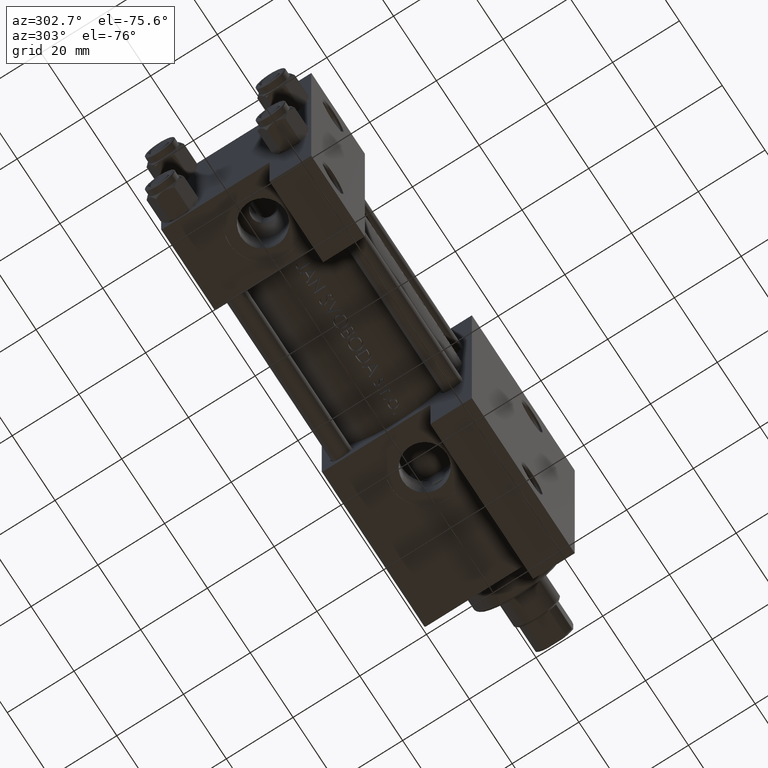
[diagram: clean part render]
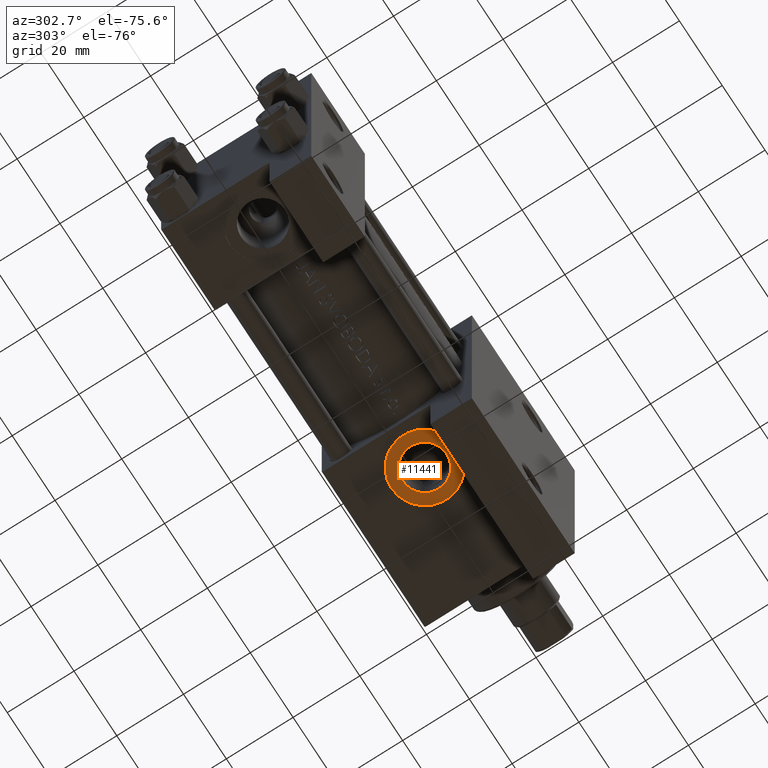
[diagram: same view with one face highlighted and labeled with its STEP entity id]
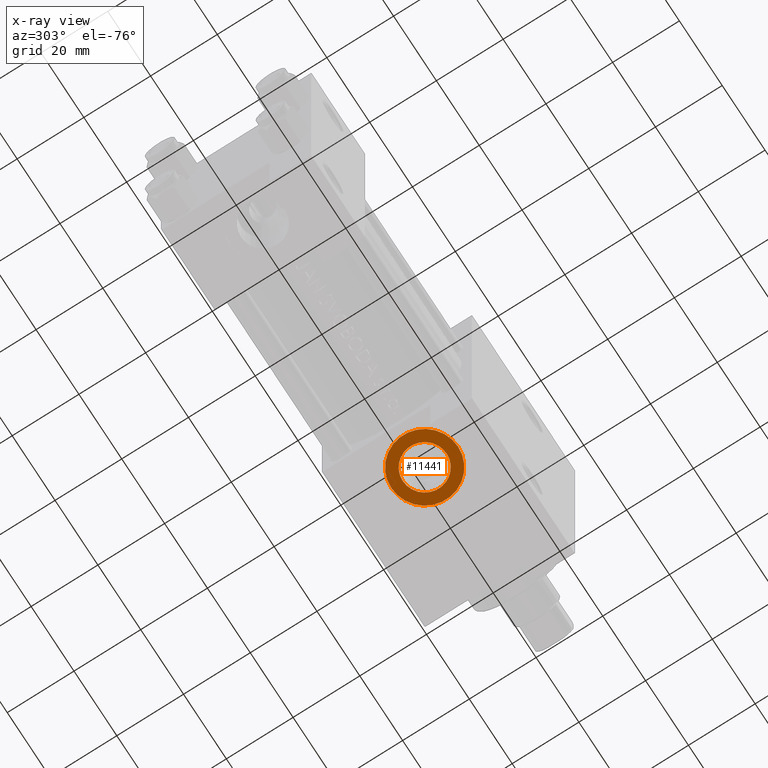
[diagram: x-ray of the same camera — body ghosted, the highlighted face saturated]
A machine part, auxiliary view. The second image highlights one B-rep face of the part: STEP entity #11441.
The next image is the same camera in x-ray: the body ghosted, the highlighted face saturated — about 0% of this face is hidden behind the body in this view.
In plain terms, the highlighted planar face has unit normal (0, 0, -1).
Its self-contained STEP definition (entity closure, byte-faithful):
#699 = AXIS2_PLACEMENT_3D ( 'NONE', #12300, #41633, #8684 ) ;
#757 = ORIENTED_EDGE ( 'NONE', *, *, #41939, .T. ) ;
#2469 = CARTESIAN_POINT ( 'NONE',  ( 88.00000000000001421, 22.30000000000000426, -6.580000000000002736 ) ) ;
#3579 = CARTESIAN_POINT ( 'NONE',  ( 88.00000000000001421, 22.30000000000000426, 6.580000000000002736 ) ) ;
#4231 = DIRECTION ( 'NONE',  ( 0.000000000000000000, 1.000000000000000000, 0.000000000000000000 ) ) ;
#6061 = AXIS2_PLACEMENT_3D ( 'NONE', #41026, #4231, #18441 ) ;
#8378 = ORIENTED_EDGE ( 'NONE', *, *, #22933, .F. ) ;
#8684 = DIRECTION ( 'NONE',  ( 0.000000000000000000, -0.000000000000000000, 1.000000000000000000 ) ) ;
#9396 = FACE_OUTER_BOUND ( 'NONE', #11329, .T. ) ;
#10389 = DIRECTION ( 'NONE',  ( 0.000000000000000000, 1.000000000000000000, 0.000000000000000000 ) ) ;
#11329 = EDGE_LOOP ( 'NONE', ( #23310, #757 ) ) ;
#11441 = ADVANCED_FACE ( 'NONE', ( #27689, #9396 ), #45240, .T. ) ;
#11457 = AXIS2_PLACEMENT_3D ( 'NONE', #31993, #28385, #33189 ) ;
#12300 = CARTESIAN_POINT ( 'NONE',  ( 88.00000000000001421, 22.30000000000000426, 0.000000000000000000 ) ) ;
#12702 = DIRECTION ( 'NONE',  ( 0.000000000000000000, 1.000000000000000000, 0.000000000000000000 ) ) ;
#18441 = DIRECTION ( 'NONE',  ( 0.000000000000000000, 0.000000000000000000, 1.000000000000000000 ) ) ;
#22210 = CARTESIAN_POINT ( 'NONE',  ( 88.00000000000001421, 22.30000000000000426, 9.999999999999994671 ) ) ;
#22933 = EDGE_CURVE ( 'NONE', #35779, #47138, #26060, .T. ) ;
#23310 = ORIENTED_EDGE ( 'NONE', *, *, #34107, .T. ) ;
#23420 = EDGE_CURVE ( 'NONE', #47138, #35779, #34500, .T. ) ;
#25117 = VERTEX_POINT ( 'NONE', #22210 ) ;
#25508 = AXIS2_PLACEMENT_3D ( 'NONE', #35898, #10389, #43342 ) ;
#26060 = CIRCLE ( 'NONE', #6061, 6.580000000000002736 ) ;
#27689 = FACE_BOUND ( 'NONE', #45178, .T. ) ;
#28385 = DIRECTION ( 'NONE',  ( 0.000000000000000000, 1.000000000000000000, 0.000000000000000000 ) ) ;
#30225 = AXIS2_PLACEMENT_3D ( 'NONE', #45646, #12702, #34839 ) ;
#31993 = CARTESIAN_POINT ( 'NONE',  ( 88.00000000000001421, 22.30000000000000426, 0.000000000000000000 ) ) ;
#33189 = DIRECTION ( 'NONE',  ( 0.000000000000000000, 0.000000000000000000, 1.000000000000000000 ) ) ;
#33737 = VERTEX_POINT ( 'NONE', #34767 ) ;
#34075 = CIRCLE ( 'NONE', #30225, 9.999999999999994671 ) ;
#34107 = EDGE_CURVE ( 'NONE', #25117, #33737, #46241, .T. ) ;
#34500 = CIRCLE ( 'NONE', #11457, 6.580000000000002736 ) ;
#34767 = CARTESIAN_POINT ( 'NONE',  ( 88.00000000000001421, 22.30000000000000426, -9.999999999999994671 ) ) ;
#34839 = DIRECTION ( 'NONE',  ( 0.000000000000000000, 0.000000000000000000, 1.000000000000000000 ) ) ;
#35779 = VERTEX_POINT ( 'NONE', #2469 ) ;
#35898 = CARTESIAN_POINT ( 'NONE',  ( 88.00000000000001421, 22.30000000000000426, 0.000000000000000000 ) ) ;
#41026 = CARTESIAN_POINT ( 'NONE',  ( 88.00000000000001421, 22.30000000000000426, 0.000000000000000000 ) ) ;
#41633 = DIRECTION ( 'NONE',  ( 0.000000000000000000, 1.000000000000000000, 0.000000000000000000 ) ) ;
#41939 = EDGE_CURVE ( 'NONE', #33737, #25117, #34075, .T. ) ;
#43342 = DIRECTION ( 'NONE',  ( 0.000000000000000000, 0.000000000000000000, 1.000000000000000000 ) ) ;
#44821 = ORIENTED_EDGE ( 'NONE', *, *, #23420, .F. ) ;
#45178 = EDGE_LOOP ( 'NONE', ( #44821, #8378 ) ) ;
#45240 = PLANE ( 'NONE',  #699 ) ;
#45646 = CARTESIAN_POINT ( 'NONE',  ( 88.00000000000001421, 22.30000000000000426, 0.000000000000000000 ) ) ;
#46241 = CIRCLE ( 'NONE', #25508, 9.999999999999994671 ) ;
#47138 = VERTEX_POINT ( 'NONE', #3579 ) ;